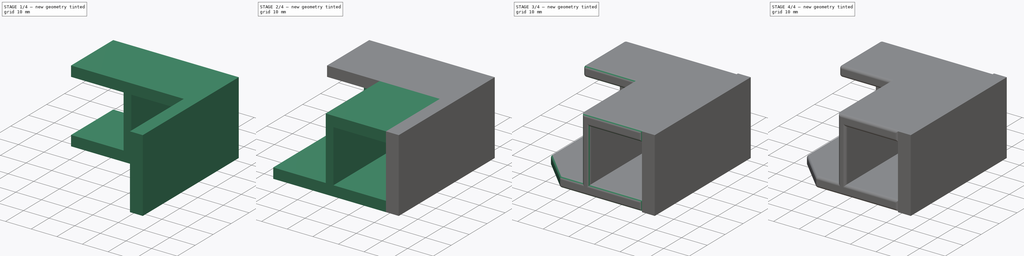
[diagram: build sequence overview — one tinted view per stage of 4, left to right]
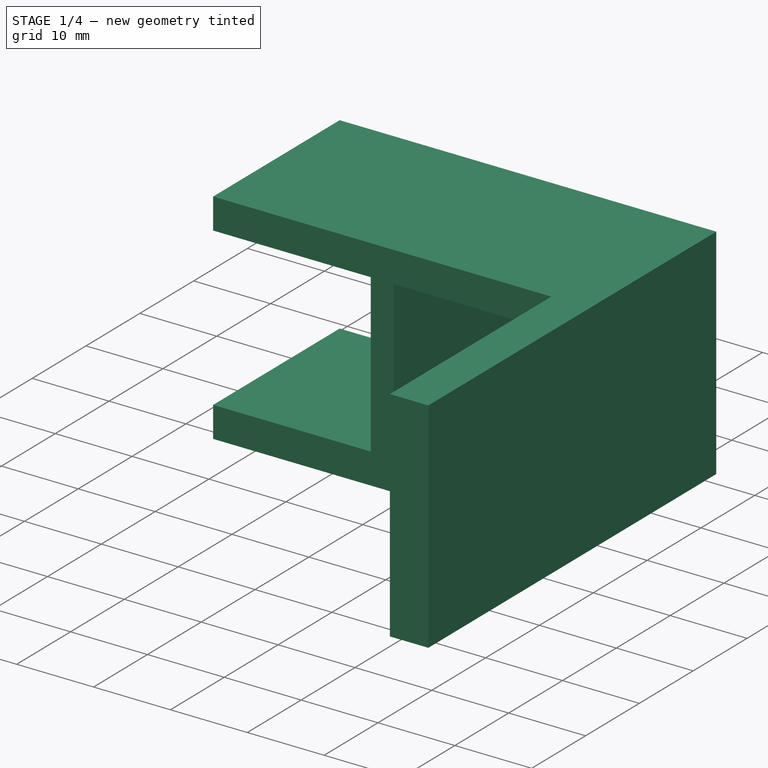
[diagram: stage 1 of 4 — iso view after this stage's code; geometry added in this stage tinted green]
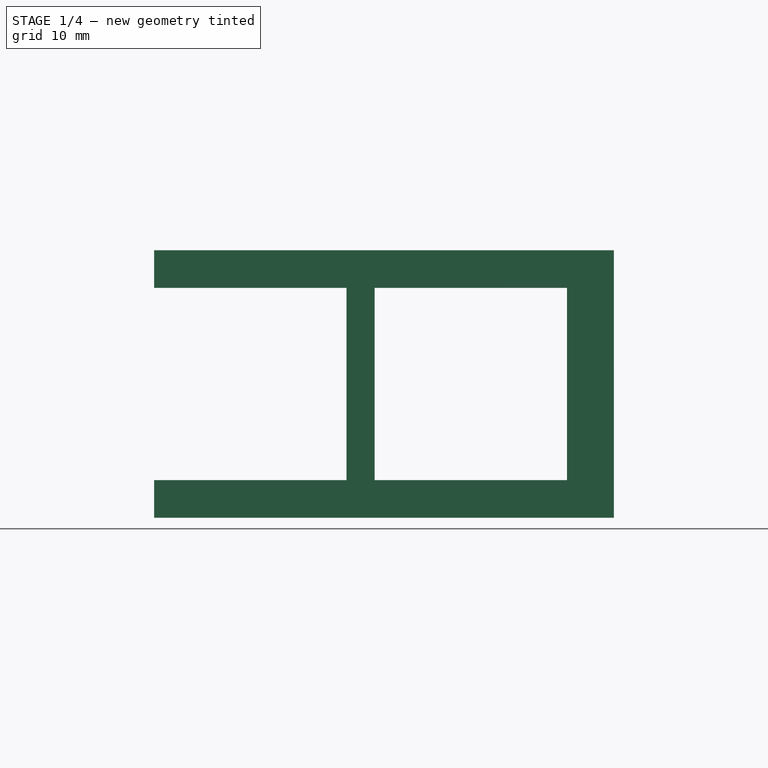
[diagram: stage 1 of 4 — front view after this stage's code; geometry added in this stage tinted green]
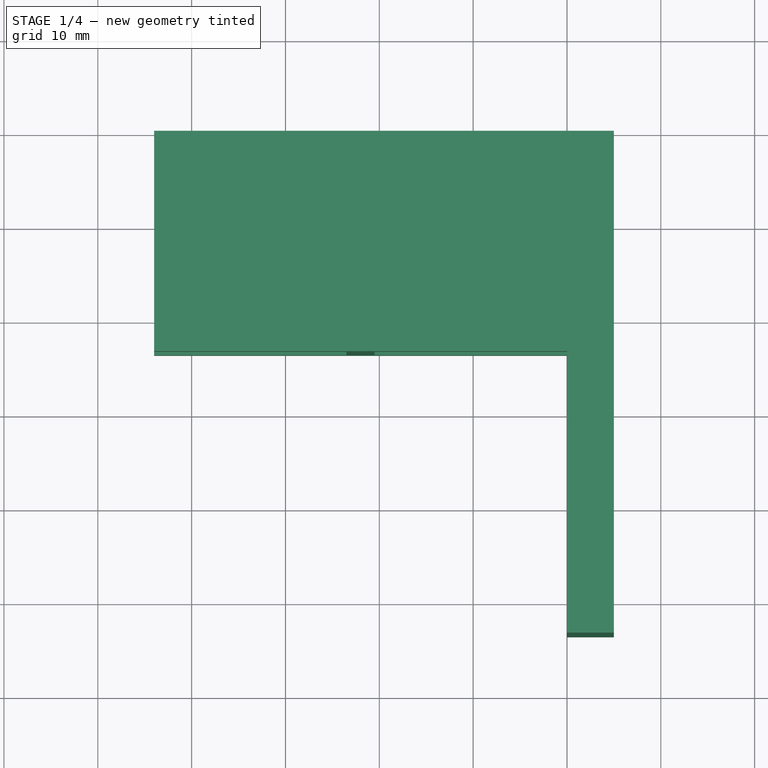
[diagram: stage 1 of 4 — top view after this stage's code; geometry added in this stage tinted green]
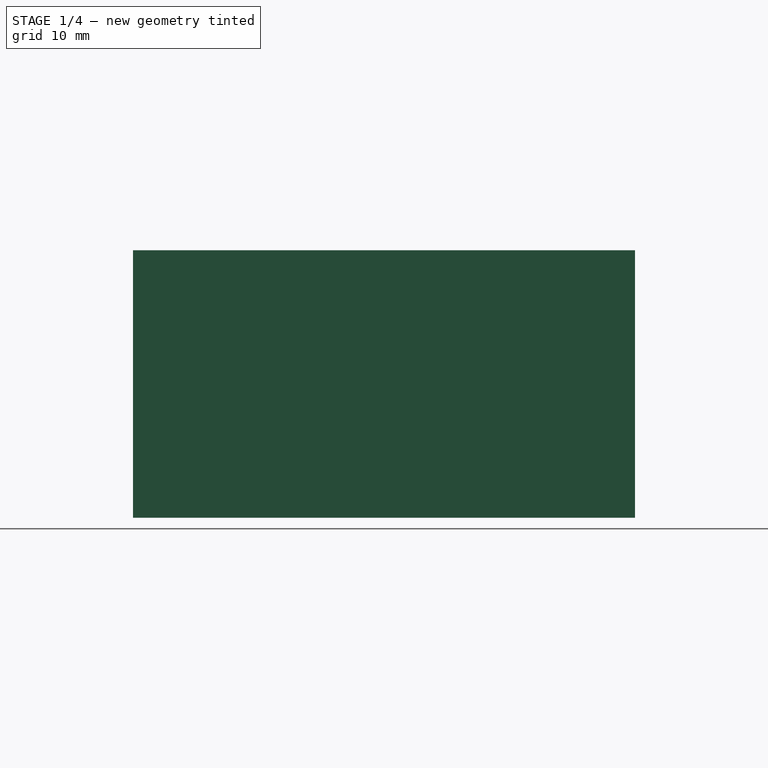
[diagram: stage 1 of 4 — right view after this stage's code; geometry added in this stage tinted green]
FCSTD DOCUMENT  (FreeCAD 1.0R39109 (Git))
Label: Solarhalter
License: All rights reserved
LicenseURL: http://en.wikipedia.org/wiki/All_rights_reserved
objects: Sketcher::SketchObject×5, PartDesign::Pad×4, PartDesign::Fillet×4, PartDesign::Body×2, PartDesign::Pocket×1, PartDesign::Chamfer×1
note: 42 computed .brp shape members not serialized (recipe doc carries the construction recipe); baked Part::Feature solids carry a one-line shape summary decoded from their .brp

FEATURE [Sketcher::SketchObject] Sketch
  ArcFitTolerance = 1e-06
  AttachmentSupport = -> [XZ_Plane]
  FullyConstrained = true
  MakeInternals = false
  MapMode = 5
  Placement = pos=(0,0,0) rot=(1,0,0;1.5708rad)
  sketch-geometry (12):
    g0: LineSegment StartX=0 StartY=0 StartZ=0 EndX=-44 EndY=0 EndZ=0
    g1: LineSegment StartX=-44 StartY=28.5 StartZ=0 EndX=0 EndY=28.5 EndZ=0
    g2: LineSegment StartX=0 StartY=28.5 StartZ=0 EndX=0 EndY=24.5 EndZ=0
    g3: LineSegment StartX=0 StartY=24.5 StartZ=0 EndX=-20.5 EndY=24.5 EndZ=0
    g4: LineSegment StartX=-20.5 StartY=24.5 StartZ=0 EndX=-20.5 EndY=4 EndZ=0
    g5: LineSegment StartX=-20.5 StartY=4 StartZ=0 EndX=0 EndY=4 EndZ=0
    g6: LineSegment StartX=0 StartY=4 StartZ=0 EndX=0 EndY=0 EndZ=0
    g7: LineSegment StartX=-44 StartY=4 StartZ=0 EndX=-23.5 EndY=4 EndZ=0
    g8: LineSegment StartX=-23.5 StartY=4 StartZ=0 EndX=-23.5 EndY=24.5 EndZ=0
    g9: LineSegment StartX=-23.5 StartY=24.5 StartZ=0 EndX=-44 EndY=24.5 EndZ=0
    g10: LineSegment StartX=-44 StartY=24.5 StartZ=0 EndX=-44 EndY=28.5 EndZ=0
    g11: LineSegment StartX=-44 StartY=4 StartZ=0 EndX=-44 EndY=0 EndZ=0
  constraints (35):
    c: PointOnObject(g0,g-2)
    c: Horizontal(g1)
    c: Coincident(g1,g2)
    c: Vertical(g2)
    c: Coincident(g2,g3)
    c: Horizontal(g3)
    c: Coincident(g3,g4)
    c: Vertical(g4)
    c: Coincident(g4,g5)
    c: PointOnObject(g5,g-2)
    c: Horizontal(g5)
    c: Coincident(g5,g6)
    c: Coincident(g6,g0)
    c: Coincident(g7,g8)
    c: Coincident(g8,g9)
    c: Vertical(g8)
    c: Horizontal(g7)
    c: Horizontal(g9)
    c: Distance(g9,g8) = 20.5
    c: Distance(g7,g9) = 20.5
    c: Coincident(g10,g9)
    c: Coincident(g10,g1)
    c: Coincident(g11,g7)
    c: Coincident(g11,g0)
    c: Vertical(g10)
    c: Vertical(g11)
    c: DistanceY(g2,g2) = 4
    c: DistanceY(g6,g6) = 4
    c: Horizontal(g7,g4)
    c: Horizontal(g8,g3)
    c: Tangent(g0,g-1)
    c: Vertical(g7,g9)
    c: Distance(g7,g4) = 3
    c: Vertical(g5,g2)
    c: DistanceX(g3,g3) = 20.5
FEATURE [PartDesign::Pad] Pad
  Direction = (0,-1,2e-16)
  Length = 23.5
  Length2 = 10
  Placement = pos=(0,0,0) rot=(1,0,0;1.5708rad)
  Profile = -> Sketch
  ReferenceAxis = -> Sketch [N_Axis]
  Suppressed = false
  Type = 0
FEATURE [PartDesign::Body] Body  label="Körper"
  AllowCompound = false
  Group = -> [Sketch,Pad,Sketch001,Pad001,Sketch002,Pad002,Sketch003,Pocket,Chamfer,Fillet,Fillet001,Fillet002,Fillet003]
  Origin = -> Origin
  Tip = -> Fillet003
FEATURE [Sketcher::SketchObject] Sketch004
  ArcFitTolerance = 1e-06
  AttachmentSupport = -> [YZ_Plane001]
  FullyConstrained = true
  MakeInternals = false
  MapMode = 5
  Placement = pos=(0,0,0) rot=(0.57735,0.57735,0.57735;2.0944rad)
  sketch-geometry (4):
    g0: LineSegment StartX=0 StartY=0 StartZ=0 EndX=0 EndY=28.5 EndZ=0
    g1: LineSegment StartX=0 StartY=28.5 StartZ=0 EndX=-53.5 EndY=28.5 EndZ=0
    g2: LineSegment StartX=-53.5 StartY=28.5 StartZ=0 EndX=-53.5 EndY=0 EndZ=0
    g3: LineSegment StartX=-53.5 StartY=0 StartZ=0 EndX=0 EndY=0 EndZ=0
  constraints (11):
    c: Coincident(g0,g1)
    c: Coincident(g1,g2)
    c: Coincident(g2,g3)
    c: Coincident(g3,g0)
    c: Vertical(g0)
    c: Vertical(g2)
    c: Horizontal(g1)
    c: Horizontal(g3)
    c: Distance(g0,g2) = 53.5
    c: Distance(g1,g3) = 28.5
    c: Coincident(g0,g-1)
FEATURE [PartDesign::Pad] Pad003
  Direction = (1,0,0)
  Length = 5
  Length2 = 10
  Placement = pos=(0,0,0) rot=(1,1,1;2.0944rad)
  Profile = -> Sketch004
  ReferenceAxis = -> Sketch004 [N_Axis]
  Suppressed = false
  Type = 0
FEATURE [PartDesign::Body] Body001  label="Körper001"
  AllowCompound = false
  Group = -> [Sketch004,Pad003]
  Origin = -> Origin001
  Tip = -> Pad003
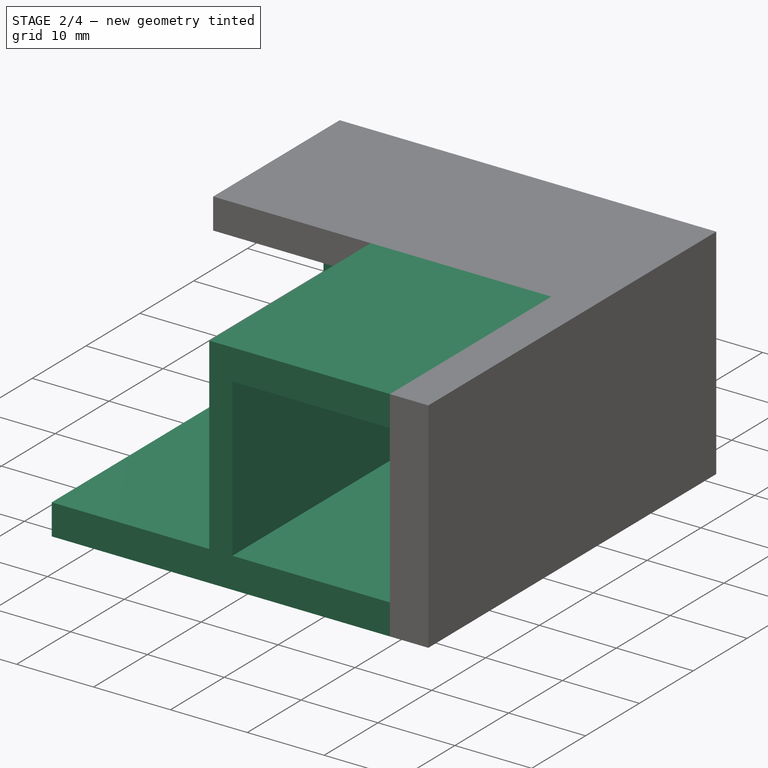
[diagram: stage 2 of 4 — iso view after this stage's code; geometry added in this stage tinted green]
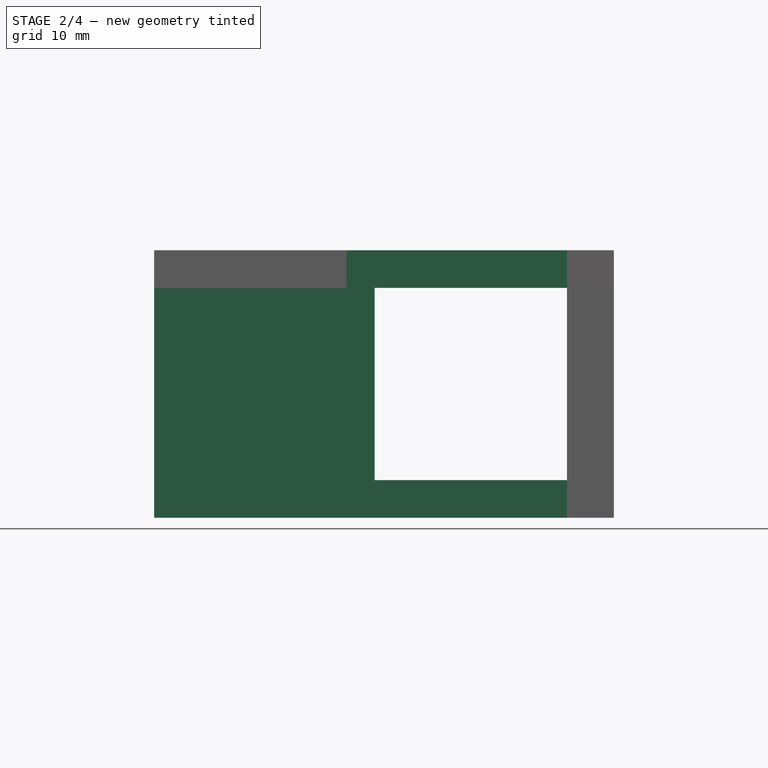
[diagram: stage 2 of 4 — front view after this stage's code; geometry added in this stage tinted green]
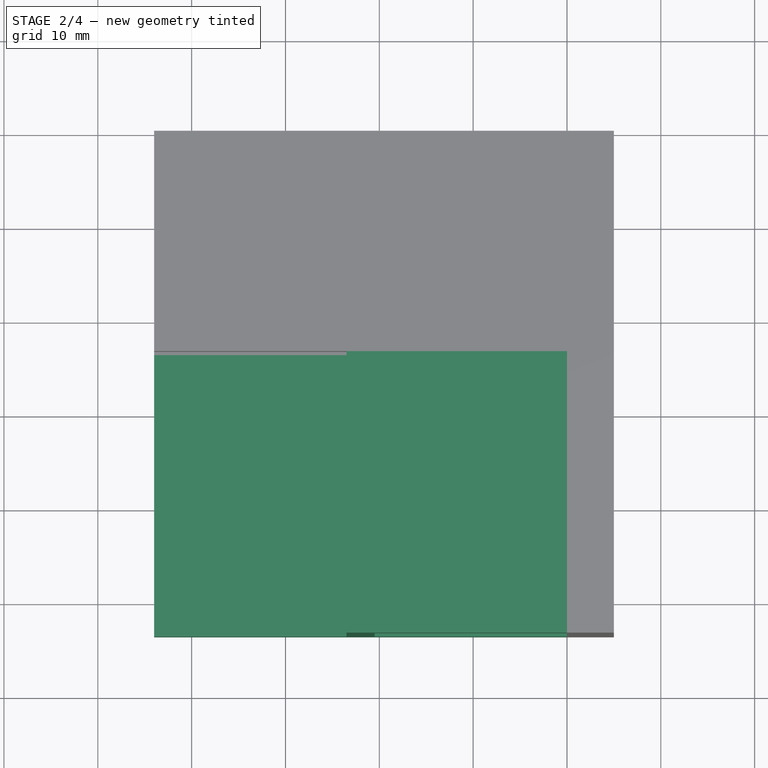
[diagram: stage 2 of 4 — top view after this stage's code; geometry added in this stage tinted green]
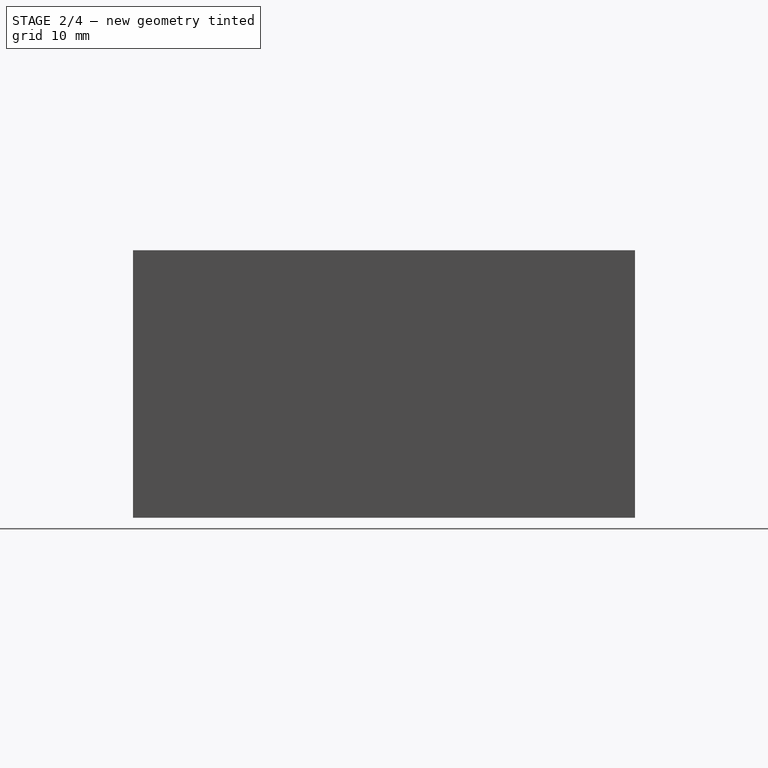
[diagram: stage 2 of 4 — right view after this stage's code; geometry added in this stage tinted green]
FEATURE [Sketcher::SketchObject] Sketch001
  ArcFitTolerance = 1e-06
  AttachmentSupport = -> [Pad]
  ExternalGeometry = -> [Pad]
  FullyConstrained = true
  MakeInternals = false
  MapMode = 5
  Placement = pos=(0,3.2e-15,0) rot=(-1,0,0;1.5708rad)
  sketch-geometry (4):
    g0: LineSegment StartX=-44 StartY=-4 StartZ=0 EndX=-44 EndY=-24.5 EndZ=0
    g1: LineSegment StartX=-44 StartY=-24.5 StartZ=0 EndX=-23.5 EndY=-24.5 EndZ=0
    g2: LineSegment StartX=-23.5 StartY=-24.5 StartZ=0 EndX=-23.5 EndY=-4 EndZ=0
    g3: LineSegment StartX=-23.5 StartY=-4 StartZ=0 EndX=-44 EndY=-4 EndZ=0
  constraints (10):
    c: Coincident(g0,g1)
    c: Coincident(g1,g2)
    c: Coincident(g2,g3)
    c: Coincident(g3,g0)
    c: Vertical(g0)
    c: Vertical(g2)
    c: Horizontal(g1)
    c: Horizontal(g3)
    c: Coincident(g0,g-3)
    c: Coincident(g1,g-4)
FEATURE [PartDesign::Pad] Pad001
  BaseFeature = -> Pad
  Direction = (0,1,2e-16)
  Length = 3
  Length2 = 10
  Placement = pos=(0,0,0) rot=(1,0,0;1.5708rad)
  Profile = -> Sketch001
  ReferenceAxis = -> Sketch001 [N_Axis]
  Reversed = true
  Suppressed = false
  Type = 0
FEATURE [Sketcher::SketchObject] Sketch002
  ArcFitTolerance = 1e-06
  AttachmentSupport = -> [Pad001]
  ExternalGeometry = -> [Pad001]
  FullyConstrained = true
  MakeInternals = false
  MapMode = 5
  Placement = pos=(0,-23.5,0) rot=(1,0,0;1.5708rad)
  sketch-geometry (10):
    g0: LineSegment StartX=0 StartY=0 StartZ=0 EndX=-44 EndY=0 EndZ=0
    g1: LineSegment StartX=-44 StartY=0 StartZ=0 EndX=-44 EndY=4 EndZ=0
    g2: LineSegment StartX=-44 StartY=4 StartZ=0 EndX=-23.5 EndY=4 EndZ=0
    g3: LineSegment StartX=-23.5 StartY=28.5 StartZ=0 EndX=0 EndY=28.5 EndZ=0
    g4: LineSegment StartX=0 StartY=28.5 StartZ=0 EndX=0 EndY=24.5 EndZ=0
    g5: LineSegment StartX=0 StartY=24.5 StartZ=0 EndX=-20.5 EndY=24.5 EndZ=0
    g6: LineSegment StartX=-20.5 StartY=24.5 StartZ=0 EndX=-20.5 EndY=4 EndZ=0
    g7: LineSegment StartX=-20.5 StartY=4 StartZ=0 EndX=0 EndY=4 EndZ=0
    g8: LineSegment StartX=0 StartY=4 StartZ=0 EndX=0 EndY=0 EndZ=0
    g9: LineSegment StartX=-23.5 StartY=28.5 StartZ=0 EndX=-23.5 EndY=4 EndZ=0
  constraints (21):
    c: Coincident(g-1,g0)
    c: Coincident(g0,g-9)
    c: Coincident(g0,g1)
    c: Coincident(g1,g-3)
    c: Coincident(g1,g2)
    c: Coincident(g2,g-4)
    c: Coincident(g3,g-5)
    c: Coincident(g3,g4)
    c: Coincident(g4,g-7)
    c: Coincident(g4,g5)
    c: Coincident(g5,g-7)
    c: Coincident(g5,g6)
    c: Coincident(g6,g-8)
    c: Coincident(g6,g7)
    c: Coincident(g7,g-8)
    c: Coincident(g7,g8)
    c: Coincident(g8,g0)
    c: Horizontal(g3)
    c: Vertical(g-4,g3)
    c: Coincident(g9,g3)
    c: Coincident(g9,g2)
FEATURE [PartDesign::Pad] Pad002
  BaseFeature = -> Pad001
  Direction = (0,-1,2e-16)
  Length = 30
  Length2 = 10
  Placement = pos=(0,0,0) rot=(1,0,0;1.5708rad)
  Profile = -> Sketch002
  ReferenceAxis = -> Sketch002 [N_Axis]
  Suppressed = false
  Type = 0
FEATURE [Sketcher::SketchObject] Sketch003
  ArcFitTolerance = 1e-06
  AttachmentSupport = -> [Pad002]
  ExternalGeometry = -> [Pad002]
  FullyConstrained = true
  MakeInternals = false
  MapMode = 5
  Placement = pos=(0,0,0) rot=(0.707107,0,0.707107;3.14159rad)
  sketch-geometry (4):
    g0: Circle CenterX=2 CenterY=43.5 CenterZ=0 NormalX=0 NormalY=0 NormalZ=1 AngleXU=0 Radius=1.3
    g1: Circle CenterX=26.5 CenterY=43.5 CenterZ=0 NormalX=0 NormalY=0 NormalZ=1 AngleXU=0 Radius=1.3
    g2: Circle CenterX=2 CenterY=10 CenterZ=0 NormalX=0 NormalY=0 NormalZ=1 AngleXU=0 Radius=1.3
    g3: Circle CenterX=26.5 CenterY=10 CenterZ=0 NormalX=0 NormalY=0 NormalZ=1 AngleXU=0 Radius=1.3
  constraints (12):
    c: Diameter(g0) = 2.6
    c: Vertical(g0,g2)
    c: Equal(g0,g1)
    c: Equal(g1,g3)
    c: Equal(g3,g2)
    c: Horizontal(g2,g3)
    c: Horizontal(g0,g1)
    c: Vertical(g3,g1)
    c: Distance(g2,g-4) = 2
    c: Distance(g3,g-3) = 2
    c: Distance(g3,g-1) = 10
    c: DistanceY(g0,g-5) = 10
FEATURE [PartDesign::Pocket] Pocket
  BaseFeature = -> Pad002
  Direction = (-1,0,2e-16)
  Length = 20
  Length2 = 5
  Placement = pos=(0,0,0) rot=(1,0,0;1.5708rad)
  Profile = -> Sketch003
  ReferenceAxis = -> Sketch003 [N_Axis]
  Suppressed = false
  Type = 0
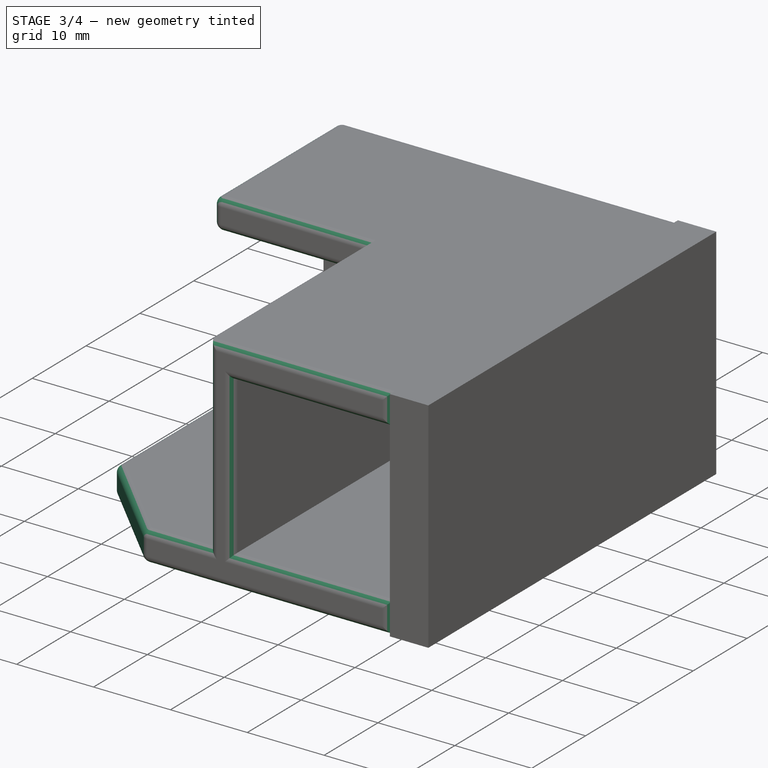
[diagram: stage 3 of 4 — iso view after this stage's code; geometry added in this stage tinted green]
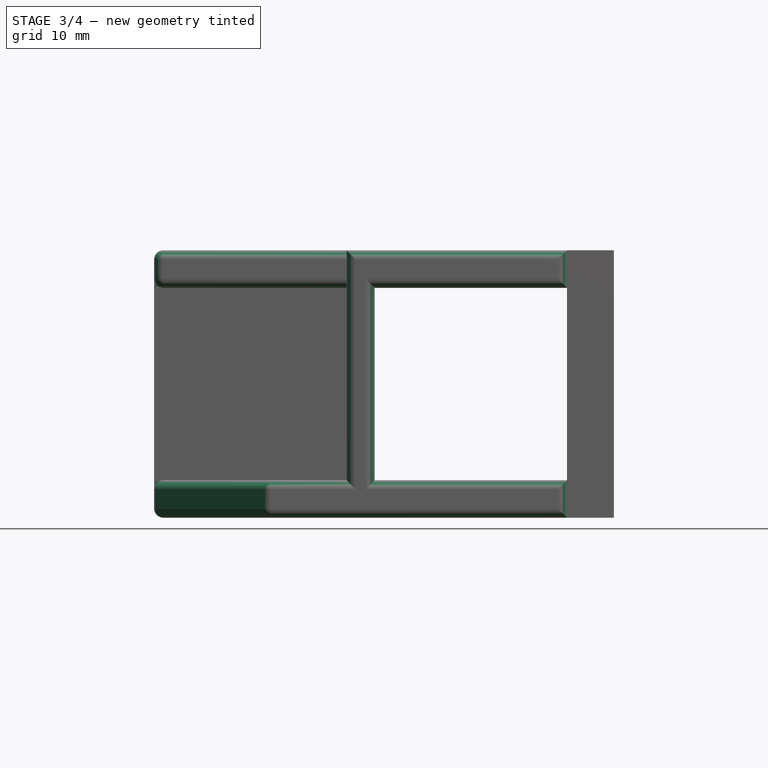
[diagram: stage 3 of 4 — front view after this stage's code; geometry added in this stage tinted green]
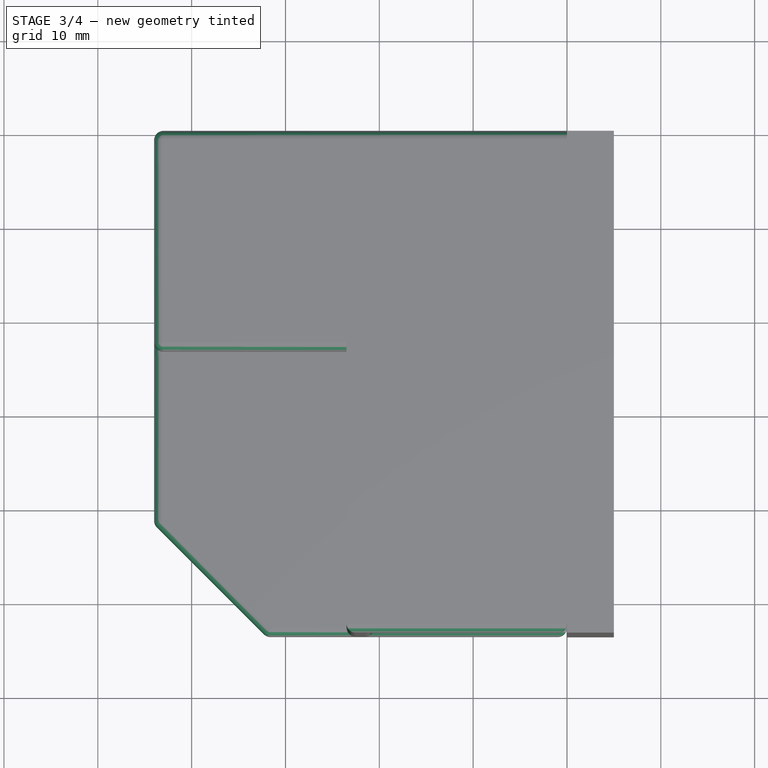
[diagram: stage 3 of 4 — top view after this stage's code; geometry added in this stage tinted green]
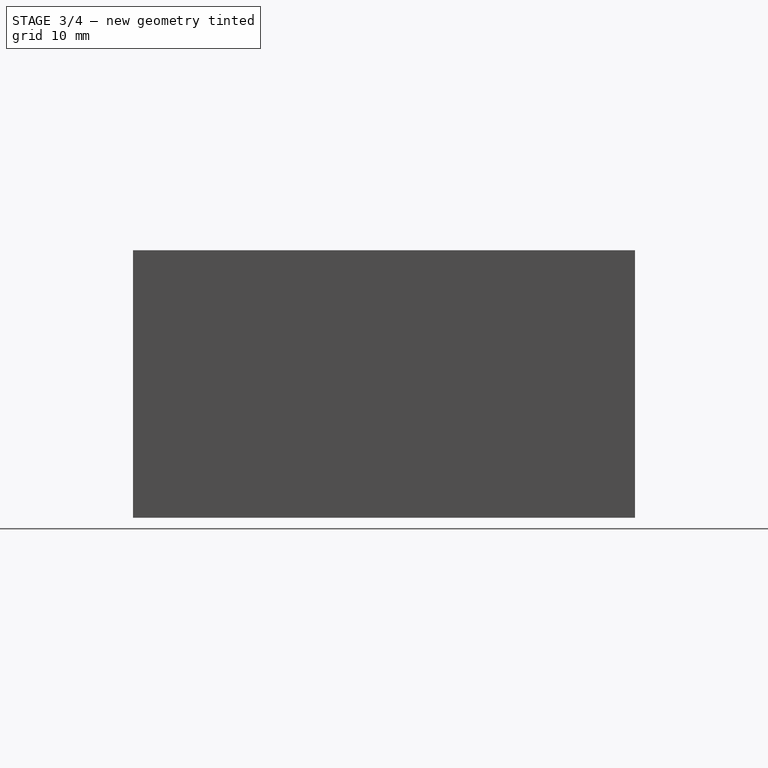
[diagram: stage 3 of 4 — right view after this stage's code; geometry added in this stage tinted green]
FEATURE [PartDesign::Chamfer] Chamfer
  Angle = 45
  Base = -> Pocket [Edge25]
  BaseFeature = -> Pocket
  ChamferType = 0
  FlipDirection = false
  Placement = pos=(0,0,0) rot=(1,0,0;1.5708rad)
  Size = 12
  Size2 = 1
  SupportTransform = false
  Suppressed = false
  UseAllEdges = false
FEATURE [PartDesign::Fillet] Fillet
  Base = -> Chamfer [Face5,Face3,Face2,Face8]
  BaseFeature = -> Chamfer
  Placement = pos=(0,0,0) rot=(1,0,0;1.5708rad)
  Radius = 1
  SupportTransform = false
  Suppressed = false
  UseAllEdges = false
FEATURE [PartDesign::Fillet] Fillet001
  Base = -> Fillet [Edge39,Edge41,Edge40,Edge58,Edge66]
  BaseFeature = -> Fillet
  Placement = pos=(0,0,0) rot=(1,0,0;1.5708rad)
  Radius = 1
  SupportTransform = false
  Suppressed = false
  UseAllEdges = false
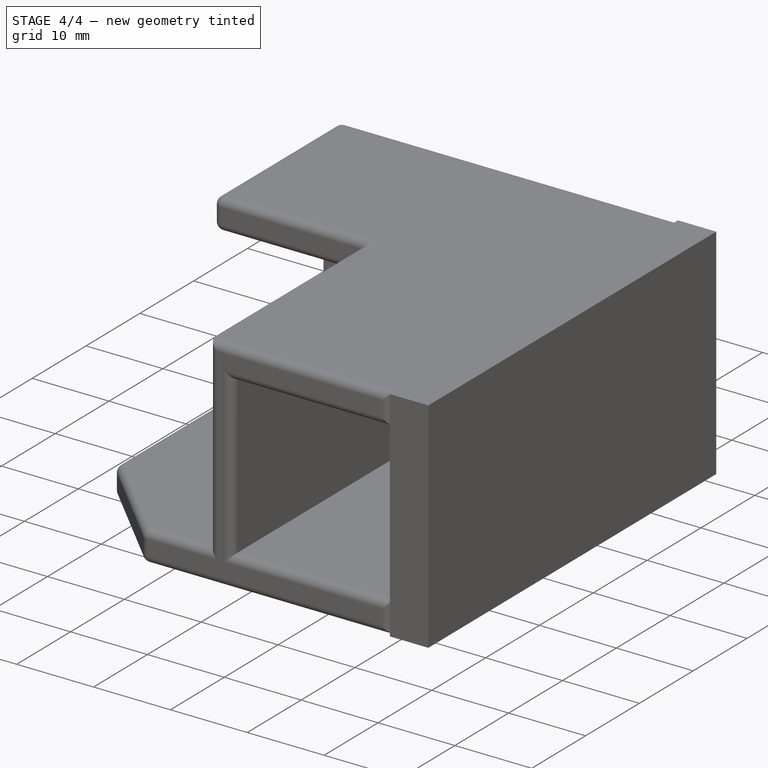
[diagram: stage 4 of 4 — iso view after this stage's code; geometry added in this stage tinted green]
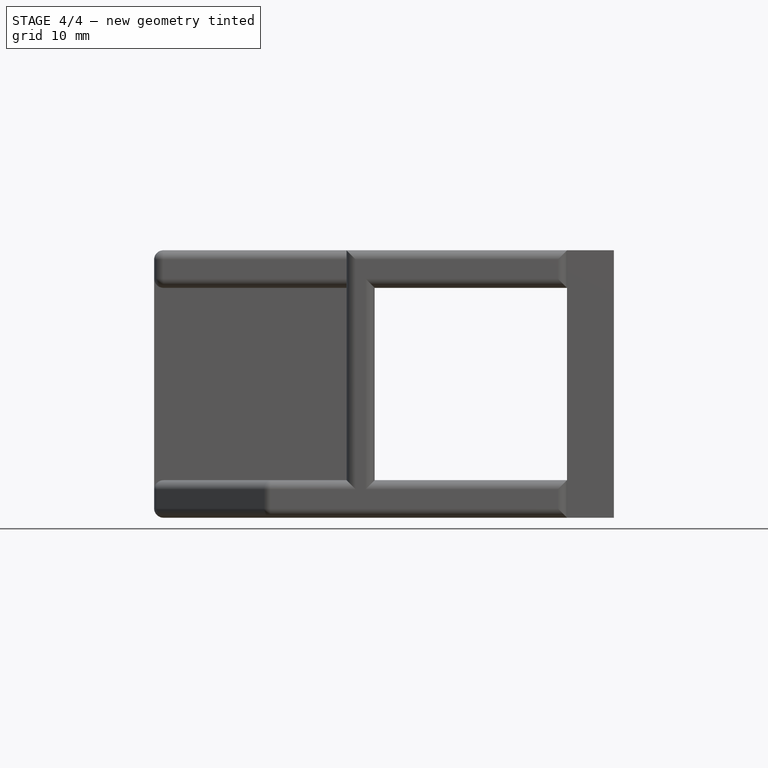
[diagram: stage 4 of 4 — front view after this stage's code; geometry added in this stage tinted green]
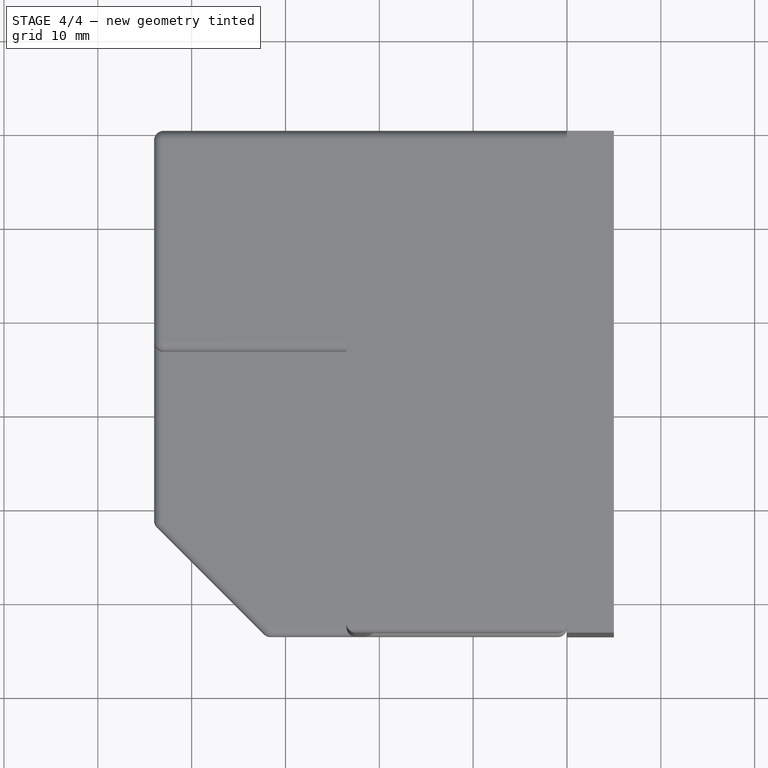
[diagram: stage 4 of 4 — top view after this stage's code; geometry added in this stage tinted green]
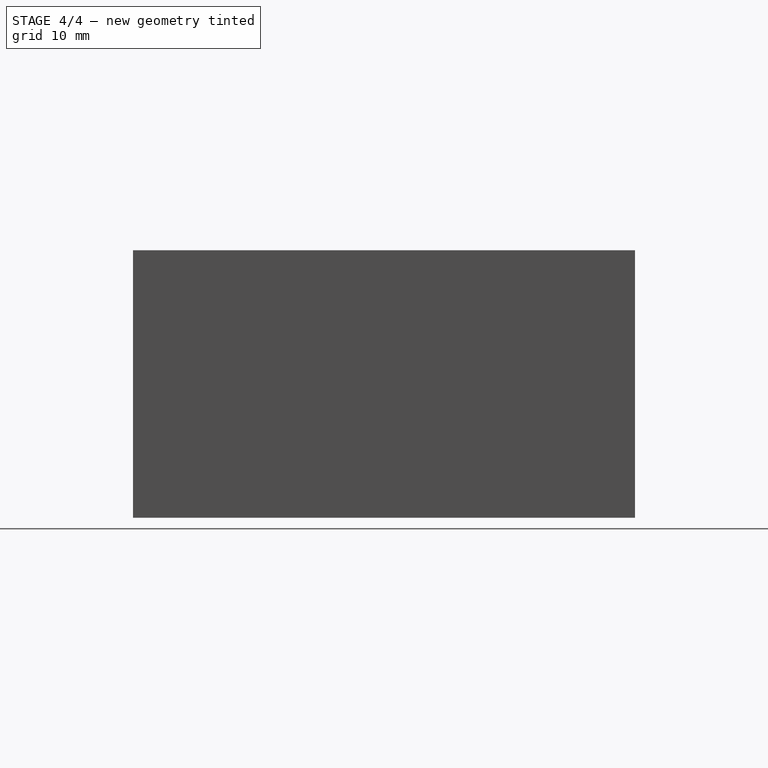
[diagram: stage 4 of 4 — right view after this stage's code; geometry added in this stage tinted green]
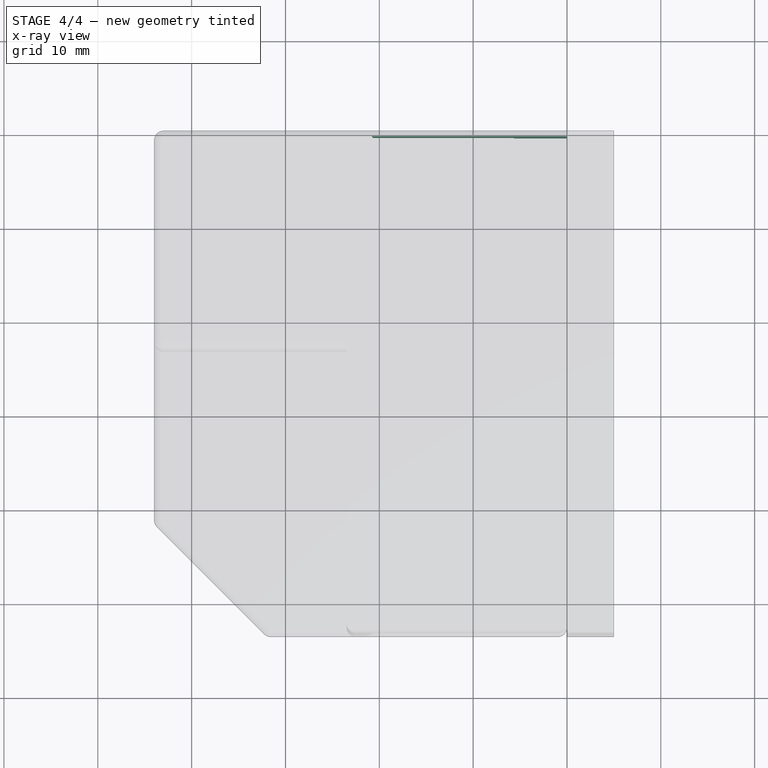
[diagram: stage 4 of 4 — x-ray composite at the top view; earlier geometry ghosted, this stage's added geometry solid]
FEATURE [PartDesign::Fillet] Fillet002
  Base = -> Fillet001 [Edge95]
  BaseFeature = -> Fillet001
  Placement = pos=(0,0,0) rot=(1,0,0;1.5708rad)
  Radius = 0.9
  SupportTransform = false
  Suppressed = false
  UseAllEdges = false
FEATURE [PartDesign::Fillet] Fillet003
  Base = -> Fillet002 [Edge10,Edge8,Edge6]
  BaseFeature = -> Fillet002
  Placement = pos=(0,0,0) rot=(1,0,0;1.5708rad)
  Radius = 0.9
  SupportTransform = false
  Suppressed = false
  UseAllEdges = false
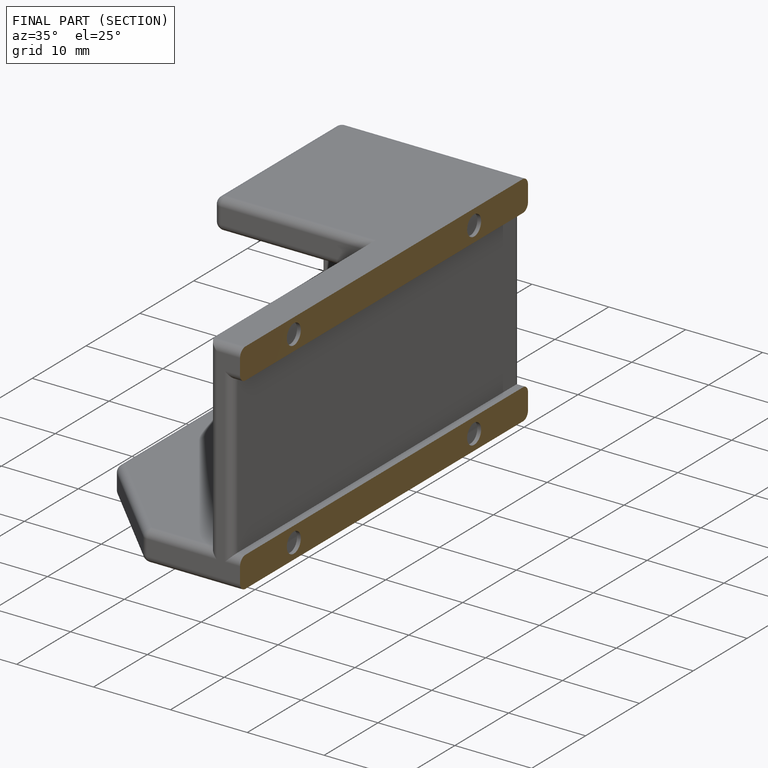
[diagram: finished part — half-section view (interior)]
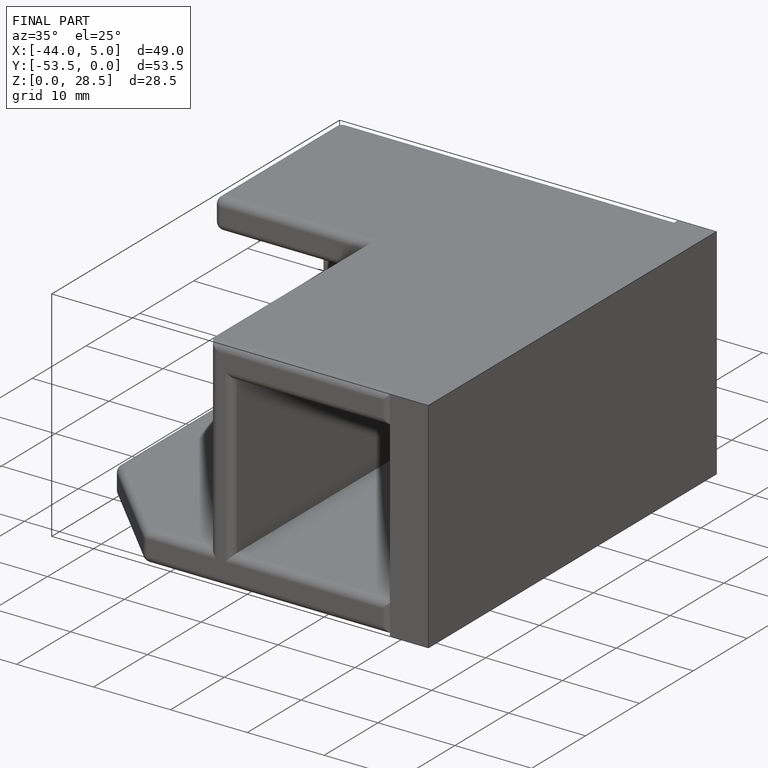
[diagram: finished part — iso view with bounding-box wireframe]
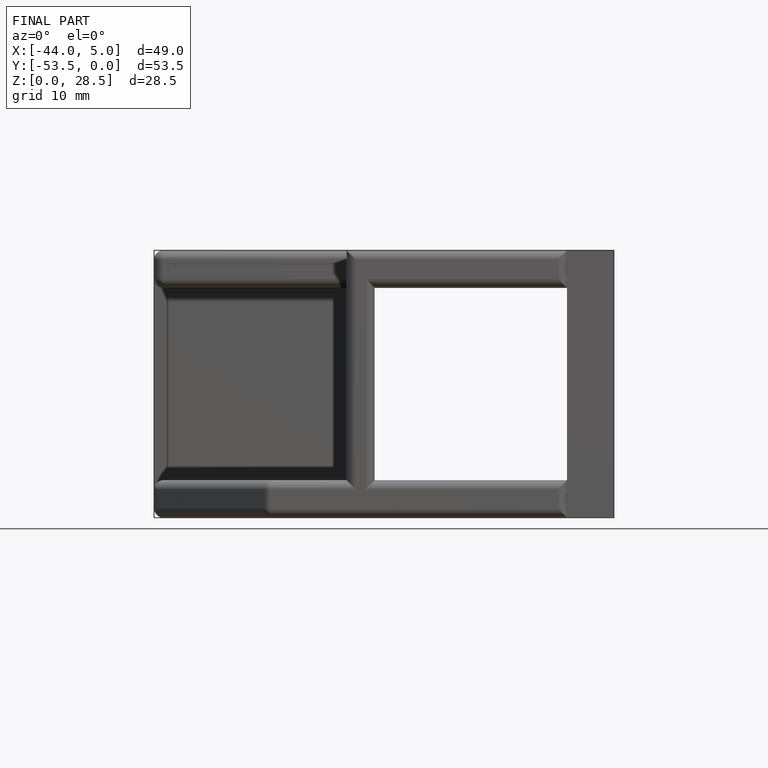
[diagram: finished part — front view with bounding-box wireframe]
